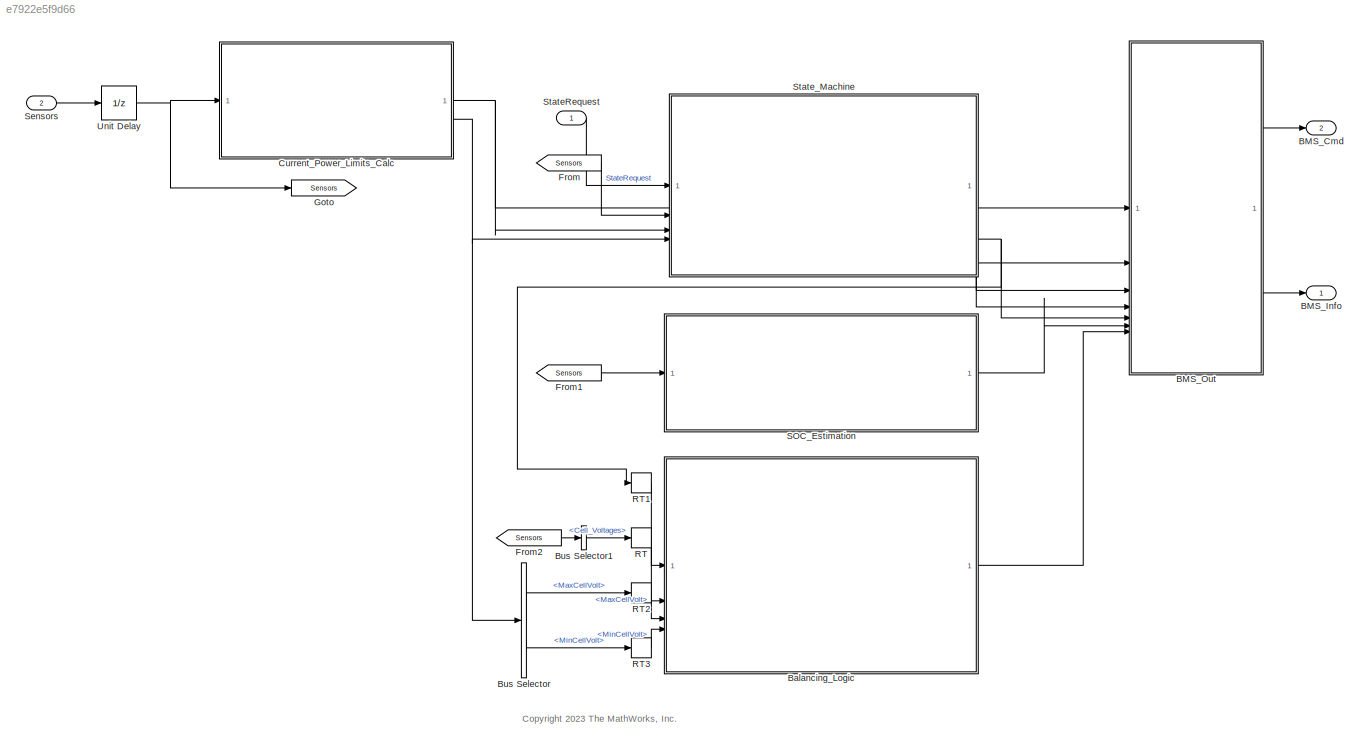
MODEL slx_e7922e5f9d66
KIND model
CONFIG AbsTol = auto
CONFIG EnableMultiTasking = off
CONFIG FixedStep = auto
CONFIG MaxStep = auto
CONFIG MinStep = auto
CONFIG RelTol = 1e-3
CONFIG SampleTimeConstraint = Unconstrained
CONFIG SolverName = FixedStepDiscrete
CONFIG StartTime = 0.0
CONFIG StopTime = 10000
WORKSPACE source: mxarray member
WORKSPACE Active_Scenario_Index: Simulink.Parameter (value not decoded)
WORKSPACE BattTempInit: Simulink.Parameter (value not decoded)
WORKSPACE Battery: object (value not decoded)
WORKSPACE CellType: Simulink.Parameter (value not decoded)
WORKSPACE Np_Module: Simulink.Parameter (value not decoded)
WORKSPACE Ns_Module: Simulink.Parameter (value not decoded)
WORKSPACE NumModules: Simulink.Parameter (value not decoded)
WORKSPACE OverCellVoltageLimit: Simulink.Parameter (value not decoded)
WORKSPACE TestCase: Simulink.Parameter (value not decoded)
WORKSPACE UnderCellVoltageLimit: Simulink.Parameter (value not decoded)
WORKSPACE ts: Simulink.Parameter (value not decoded)
BLOCK [Outport] BMS_Cmd
  BusOutputAsStruct = on
  OutDataTypeStr = Bus: BMS_Cmd
  Port = 2
  SamplingMode = Sample based
  SignalName = BMS_Cmd
  SignalType = real
  VectorParamsAs1DForOutWhenUnconnected = off
BLOCK [Outport] BMS_Info
  OutDataTypeStr = Bus: BMS_Info
  SamplingMode = Sample based
  SignalName = BMS_Info
  SignalType = real
  VectorParamsAs1DForOutWhenUnconnected = off
BLOCK [ModelReference] BMS_Out
  ModelNameDialog = BMS_Out.slx
  ModelReferenceVersion = 8.0
BLOCK [ModelReference] Balancing_Logic
  ModelNameDialog = Balancing_Logic.slx
  ModelReferenceVersion = 8.0
BLOCK [BusSelector] Bus Selector
  OutputSignals = MaxCellVolt,MinCellVolt
BLOCK [BusSelector] Bus Selector1
  OutputSignals = Cell_Voltages
BLOCK [ModelReference] Current_Power_Limits_Calc
  ModelNameDialog = CurrPowerLimCalc.slx
  ModelReferenceVersion = 8.0
BLOCK [From] From
  GotoTag = Sensors
BLOCK [From] From1
  GotoTag = Sensors
BLOCK [From] From2
  GotoTag = Sensors
BLOCK [Goto] Goto
  GotoTag = Sensors
BLOCK [RateTransition] RT
  InitialCondition = 3.6*ones(1, Ns_Module*NumModules)
BLOCK [RateTransition] RT1
  InitialCondition = BMS_State_Enum(0)
  OutPortSampleTime = 5
BLOCK [RateTransition] RT2
  InitialCondition = single(3.6)
  OutPortSampleTime = 5
BLOCK [RateTransition] RT3
  InitialCondition = single(3.6)
  OutPortSampleTime = 5
BLOCK [ModelReference] SOC_Estimation
  ModelNameDialog = SOC_Estimation.slx
  ModelReferenceVersion = 8.0
BLOCK [Inport] Sensors
  BusOutputAsStruct = on
  OutDataTypeStr = Bus: Sensors
  Port = 2
BLOCK [Inport] StateRequest
  NameLocation = top
  OutDataTypeStr = Enum: SRE
  PortDimensions = 1
  SampleTime = ts
  SignalType = real
  VarSizeSig = No
BLOCK [ModelReference] State_Machine
  ModelNameDialog = State_Machine.slx
  ModelReferenceVersion = 8.0
BLOCK [UnitDelay] Unit Delay
  HasFrameUpgradeWarning = on
  InitialCondition = struct('Cell_Voltages',3.6*ones(1, Ns_Module*NumModules),'Pack_Voltage',3.6*Ns_Module*NumModules,'Pack_Current',0,'Cell_Temperatures',BattTempInit*ones(1,Ns_Module*NumModules),'Vout_Chgr',0,'Vout_Invtr',0)
  SampleTime = -1
ANNOTATION (root): <copyright redacted>
LINE BMS_Out:1 -> BMS_Cmd:1
LINE BMS_Out:2 -> BMS_Info:1
LINE Balancing_Logic:1 -> BMS_Out:7
LINE Bus Selector1:1 -> RT:1
LINE Bus Selector:1 -> RT2:1
LINE Bus Selector:2 -> RT3:1
NET Current_Power_Limits_Calc:1 -> BMS_Out:1, State_Machine:3
NET Current_Power_Limits_Calc:2 -> Bus Selector:1, State_Machine:4
LINE From1:1 -> SOC_Estimation:1
LINE From2:1 -> Bus Selector1:1
LINE From:1 -> State_Machine:2
LINE RT1:1 -> Balancing_Logic:1
LINE RT2:1 -> Balancing_Logic:3
LINE RT3:1 -> Balancing_Logic:4
LINE RT:1 -> Balancing_Logic:2
LINE SOC_Estimation:1 -> BMS_Out:6
LINE Sensors:1 -> Unit Delay:1
LINE StateRequest:1 -> State_Machine:1
LINE State_Machine:1 -> BMS_Out:2
LINE State_Machine:2 -> BMS_Out:3
LINE State_Machine:3 -> BMS_Out:4
NET State_Machine:4 -> BMS_Out:5, RT1:1
NET Unit Delay:1 -> Current_Power_Limits_Calc:1, Goto:1
note: NET lines group one-source signal fan-out (src -> all destinations, sorted); 1:1 wires keep LINE
